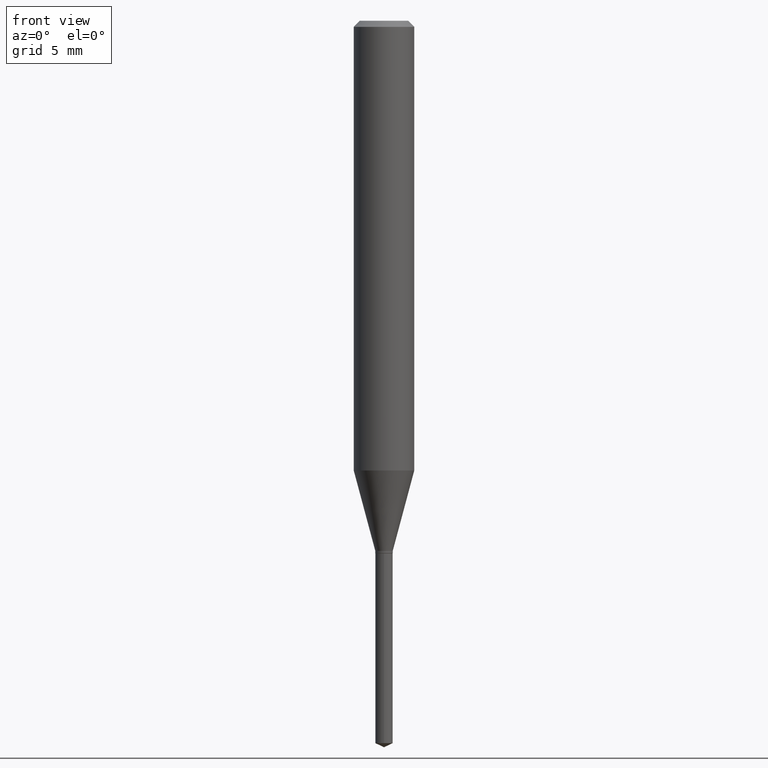
[diagram: clean part render]
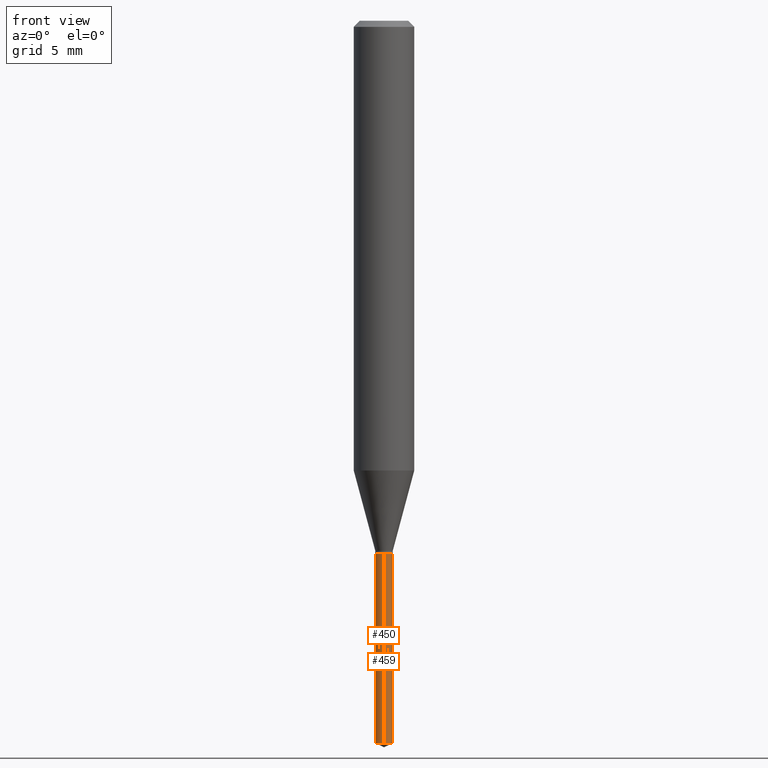
[diagram: same view with one multi-face feature highlighted, each face labeled with its STEP entity id]
A machine part, front view. The highlighted faces form ONE feature: a constant-radius fillet chain: 2 tangent blend faces with common blend radius 0.4572 mm. The faces share edges in the B-rep.
Their STEP definitions:
[1] entity #459 (Cylinder):
#3 = VERTEX_POINT ( 'NONE', #455 ) ;
#8 = VECTOR ( 'NONE', #306, 39.37007874015748143 ) ;
#9 = CIRCLE ( 'NONE', #345, 0.01799999999999999864 ) ;
#30 = CARTESIAN_POINT ( 'NONE',  ( 1.278976924368545333E-16, 0.01799999999999615796, -1.100000000000000089 ) ) ;
#37 = VERTEX_POINT ( 'NONE', #30 ) ;
#55 = EDGE_CURVE ( 'NONE', #222, #37, #419, .T. ) ;
#57 = ORIENTED_EDGE ( 'NONE', *, *, #55, .T. ) ;
#96 = CIRCLE ( 'NONE', #444, 0.01800000000000000211 ) ;
#129 = AXIS2_PLACEMENT_3D ( 'NONE', #253, #366, #401 ) ;
#136 = CARTESIAN_POINT ( 'NONE',  ( 2.690015686803650369E-29, -3.840629472727460101E-15, -1.100000000000000089 ) ) ;
#166 = CARTESIAN_POINT ( 'NONE',  ( 1.278976924368544840E-16, 0.01799999999999479100, -1.491606462153210355 ) ) ;
#173 = EDGE_CURVE ( 'NONE', #233, #3, #295, .T. ) ;
#208 = CARTESIAN_POINT ( 'NONE',  ( 3.647650008117672005E-29, -5.207954887819162925E-15, -1.491606462153210355 ) ) ;
#222 = VERTEX_POINT ( 'NONE', #166 ) ;
#226 = DIRECTION ( 'NONE',  ( -6.982962677686265133E-15, -1.000000000000000000, 0.000000000000000000 ) ) ;
#233 = VERTEX_POINT ( 'NONE', #389 ) ;
#242 = CYLINDRICAL_SURFACE ( 'NONE', #129, 0.01799999999999999864 ) ;
#243 = VECTOR ( 'NONE', #368, 39.37007874015748143 ) ;
#246 = CARTESIAN_POINT ( 'NONE',  ( -1.256933281983258730E-16, -0.01800000000000383932, -1.100000000000000089 ) ) ;
#253 = CARTESIAN_POINT ( 'NONE',  ( 2.690015686803650369E-29, -3.840629472727460101E-15, -1.100000000000000089 ) ) ;
#295 = LINE ( 'NONE', #246, #243 ) ;
#306 = DIRECTION ( 'NONE',  ( -2.445399690415121810E-29, 3.491580316559632610E-15, 1.000000000000000000 ) ) ;
#315 = ORIENTED_EDGE ( 'NONE', *, *, #173, .F. ) ;
#316 = EDGE_CURVE ( 'NONE', #233, #222, #96, .T. ) ;
#325 = FACE_OUTER_BOUND ( 'NONE', #462, .T. ) ;
#340 = CARTESIAN_POINT ( 'NONE',  ( 1.278976924368449190E-16, 0.01799999999999615796, -1.100000000000000089 ) ) ;
#345 = AXIS2_PLACEMENT_3D ( 'NONE', #136, #448, #410 ) ;
#366 = DIRECTION ( 'NONE',  ( -2.445399690415121530E-29, 3.491580316559632610E-15, 1.000000000000000000 ) ) ;
#368 = DIRECTION ( 'NONE',  ( -2.445399690415121810E-29, 3.491580316559632610E-15, 1.000000000000000000 ) ) ;
#371 = DIRECTION ( 'NONE',  ( -2.445399690415121530E-29, 3.491580316559632610E-15, 1.000000000000000000 ) ) ;
#382 = ORIENTED_EDGE ( 'NONE', *, *, #443, .F. ) ;
#389 = CARTESIAN_POINT ( 'NONE',  ( -1.256933281983163081E-16, -0.01800000000000520975, -1.491606462153210355 ) ) ;
#401 = DIRECTION ( 'NONE',  ( -6.982962677686265133E-15, -1.000000000000000000, 0.000000000000000000 ) ) ;
#410 = DIRECTION ( 'NONE',  ( -6.982962677686265133E-15, -1.000000000000000000, 0.000000000000000000 ) ) ;
#419 = LINE ( 'NONE', #340, #8 ) ;
#421 = ORIENTED_EDGE ( 'NONE', *, *, #316, .T. ) ;
#443 = EDGE_CURVE ( 'NONE', #3, #37, #9, .T. ) ;
#444 = AXIS2_PLACEMENT_3D ( 'NONE', #208, #371, #226 ) ;
#448 = DIRECTION ( 'NONE',  ( -2.445399690415121530E-29, 3.491580316559632610E-15, 1.000000000000000000 ) ) ;
#455 = CARTESIAN_POINT ( 'NONE',  ( -1.256933281983258730E-16, -0.01800000000000383932, -1.100000000000000089 ) ) ;
#459 = ADVANCED_FACE ( 'NONE', ( #325 ), #242, .T. ) ;
#462 = EDGE_LOOP ( 'NONE', ( #421, #57, #382, #315 ) ) ;
[2] entity #450 (Cylinder):
#3 = VERTEX_POINT ( 'NONE', #455 ) ;
#8 = VECTOR ( 'NONE', #306, 39.37007874015748143 ) ;
#11 = ORIENTED_EDGE ( 'NONE', *, *, #173, .T. ) ;
#13 = CARTESIAN_POINT ( 'NONE',  ( 3.647650008117672005E-29, -5.207954887819162925E-15, -1.491606462153210355 ) ) ;
#20 = CARTESIAN_POINT ( 'NONE',  ( 2.690015686803650369E-29, -3.840629472727460101E-15, -1.100000000000000089 ) ) ;
#21 = FACE_OUTER_BOUND ( 'NONE', #484, .T. ) ;
#30 = CARTESIAN_POINT ( 'NONE',  ( 1.278976924368545333E-16, 0.01799999999999615796, -1.100000000000000089 ) ) ;
#37 = VERTEX_POINT ( 'NONE', #30 ) ;
#52 = CIRCLE ( 'NONE', #312, 0.01799999999999999864 ) ;
#55 = EDGE_CURVE ( 'NONE', #222, #37, #419, .T. ) ;
#65 = ORIENTED_EDGE ( 'NONE', *, *, #180, .F. ) ;
#127 = DIRECTION ( 'NONE',  ( -6.982962677686265133E-15, -1.000000000000000000, 0.000000000000000000 ) ) ;
#128 = AXIS2_PLACEMENT_3D ( 'NONE', #13, #271, #432 ) ;
#166 = CARTESIAN_POINT ( 'NONE',  ( 1.278976924368544840E-16, 0.01799999999999479100, -1.491606462153210355 ) ) ;
#173 = EDGE_CURVE ( 'NONE', #233, #3, #295, .T. ) ;
#180 = EDGE_CURVE ( 'NONE', #37, #3, #52, .T. ) ;
#191 = ORIENTED_EDGE ( 'NONE', *, *, #250, .T. ) ;
#204 = CARTESIAN_POINT ( 'NONE',  ( 2.690015686803650369E-29, -3.840629472727460101E-15, -1.100000000000000089 ) ) ;
#222 = VERTEX_POINT ( 'NONE', #166 ) ;
#233 = VERTEX_POINT ( 'NONE', #389 ) ;
#243 = VECTOR ( 'NONE', #368, 39.37007874015748143 ) ;
#245 = DIRECTION ( 'NONE',  ( -6.982962677686265133E-15, -1.000000000000000000, 0.000000000000000000 ) ) ;
#246 = CARTESIAN_POINT ( 'NONE',  ( -1.256933281983258730E-16, -0.01800000000000383932, -1.100000000000000089 ) ) ;
#250 = EDGE_CURVE ( 'NONE', #222, #233, #322, .T. ) ;
#271 = DIRECTION ( 'NONE',  ( -2.445399690415121530E-29, 3.491580316559632610E-15, 1.000000000000000000 ) ) ;
#284 = DIRECTION ( 'NONE',  ( -2.445399690415121530E-29, 3.491580316559632610E-15, 1.000000000000000000 ) ) ;
#285 = DIRECTION ( 'NONE',  ( -2.445399690415121530E-29, 3.491580316559632610E-15, 1.000000000000000000 ) ) ;
#295 = LINE ( 'NONE', #246, #243 ) ;
#306 = DIRECTION ( 'NONE',  ( -2.445399690415121810E-29, 3.491580316559632610E-15, 1.000000000000000000 ) ) ;
#312 = AXIS2_PLACEMENT_3D ( 'NONE', #20, #285, #245 ) ;
#322 = CIRCLE ( 'NONE', #128, 0.01800000000000000211 ) ;
#340 = CARTESIAN_POINT ( 'NONE',  ( 1.278976924368449190E-16, 0.01799999999999615796, -1.100000000000000089 ) ) ;
#368 = DIRECTION ( 'NONE',  ( -2.445399690415121810E-29, 3.491580316559632610E-15, 1.000000000000000000 ) ) ;
#389 = CARTESIAN_POINT ( 'NONE',  ( -1.256933281983163081E-16, -0.01800000000000520975, -1.491606462153210355 ) ) ;
#403 = AXIS2_PLACEMENT_3D ( 'NONE', #204, #284, #127 ) ;
#405 = CYLINDRICAL_SURFACE ( 'NONE', #403, 0.01799999999999999864 ) ;
#419 = LINE ( 'NONE', #340, #8 ) ;
#432 = DIRECTION ( 'NONE',  ( -6.982962677686265133E-15, -1.000000000000000000, 0.000000000000000000 ) ) ;
#450 = ADVANCED_FACE ( 'NONE', ( #21 ), #405, .T. ) ;
#455 = CARTESIAN_POINT ( 'NONE',  ( -1.256933281983258730E-16, -0.01800000000000383932, -1.100000000000000089 ) ) ;
#460 = ORIENTED_EDGE ( 'NONE', *, *, #55, .F. ) ;
#484 = EDGE_LOOP ( 'NONE', ( #460, #191, #11, #65 ) ) ;